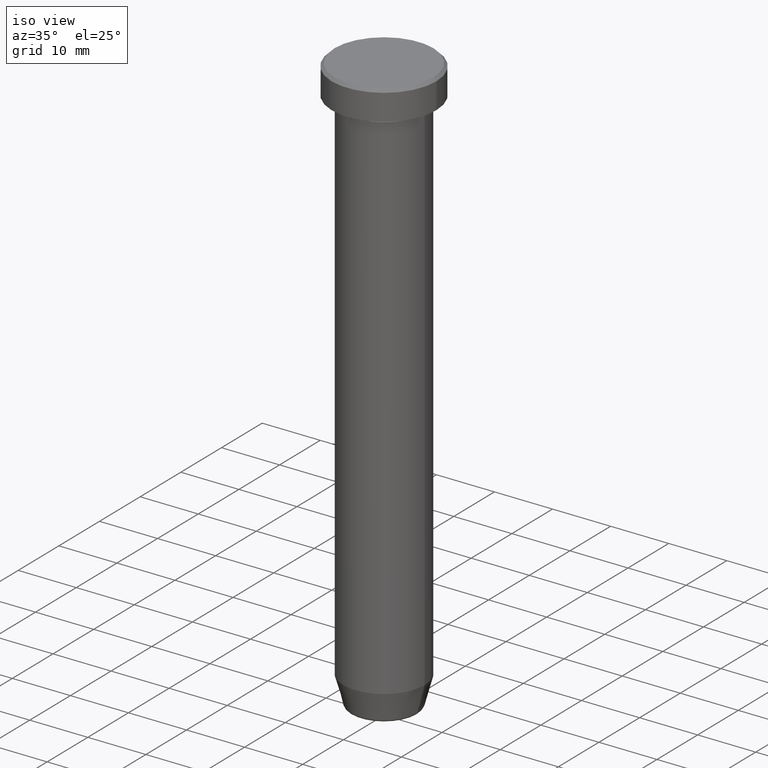
[diagram: clean part render]
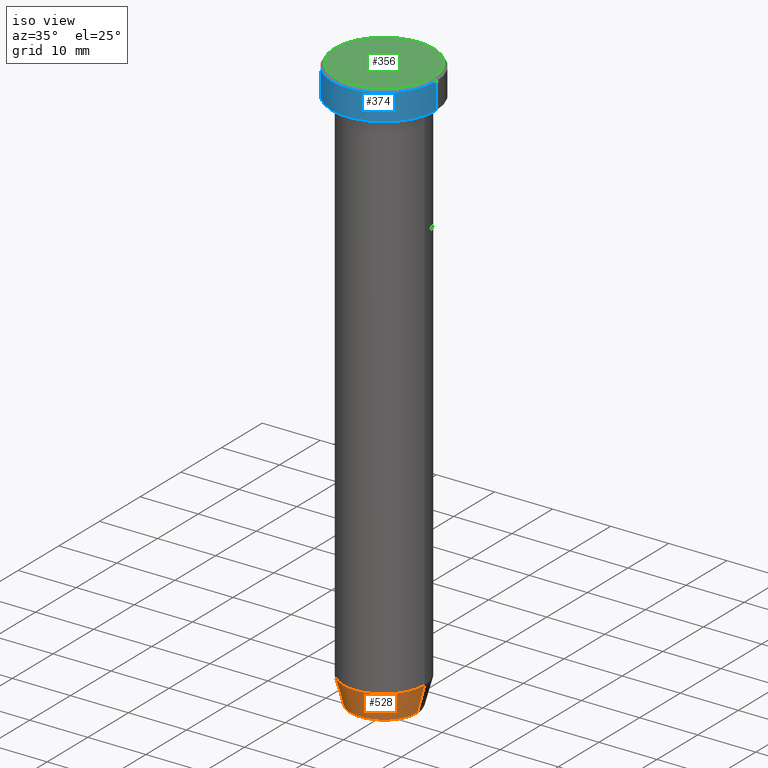
[diagram: same view with three faces highlighted in distinct colors, each labeled with its STEP entity id]
A machine part, iso view with three faces highlighted in distinct colors.
Their STEP definitions:

[orange] entity #528 — the highlighted conical surface has half-angle 15 deg.
#1 = DIRECTION ( 'NONE',  ( -0.000000000000000000, -0.000000000000000000, 1.000000000000000000 ) ) ;
#27 = DIRECTION ( 'NONE',  ( -1.000000000000000000, 0.000000000000000000, 0.000000000000000000 ) ) ;
#48 = DIRECTION ( 'NONE',  ( -0.2588190451025210170, 3.169619151431768639E-17, 0.9659258262890680902 ) ) ;
#53 = VECTOR ( 'NONE', #48, 1000.000000000000114 ) ;
#88 = DIRECTION ( 'NONE',  ( 0.2588190451025210170, 0.000000000000000000, 0.9659258262890680902 ) ) ;
#92 = CARTESIAN_POINT ( 'NONE',  ( 5.759553456999434218, 0.000000000000000000, -99.62940952255127058 ) ) ;
#139 = ORIENTED_EDGE ( 'NONE', *, *, #229, .T. ) ;
#149 = CARTESIAN_POINT ( 'NONE',  ( -5.660254037844383745, 6.931811989807006322E-16, -100.0000000000000000 ) ) ;
#150 = CIRCLE ( 'NONE', #223, 5.759553456999434218 ) ;
#156 = AXIS2_PLACEMENT_3D ( 'NONE', #584, #268, #208 ) ;
#160 = CARTESIAN_POINT ( 'NONE',  ( 7.000000000000000000, 0.000000000000000000, -95.00000000000000000 ) ) ;
#171 = LINE ( 'NONE', #321, #510 ) ;
#184 = VERTEX_POINT ( 'NONE', #92 ) ;
#208 = DIRECTION ( 'NONE',  ( 1.000000000000000000, 0.000000000000000000, 0.000000000000000000 ) ) ;
#209 = CARTESIAN_POINT ( 'NONE',  ( -5.759553456999434218, 7.812973149831952759E-16, -99.62940952255127058 ) ) ;
#213 = EDGE_CURVE ( 'NONE', #429, #184, #150, .T. ) ;
#223 = AXIS2_PLACEMENT_3D ( 'NONE', #492, #264, #27 ) ;
#229 = EDGE_CURVE ( 'NONE', #184, #413, #171, .T. ) ;
#230 = FACE_OUTER_BOUND ( 'NONE', #504, .T. ) ;
#231 = CIRCLE ( 'NONE', #156, 7.000000000000000000 ) ;
#264 = DIRECTION ( 'NONE',  ( -0.000000000000000000, -0.000000000000000000, 1.000000000000000000 ) ) ;
#268 = DIRECTION ( 'NONE',  ( -0.000000000000000000, -0.000000000000000000, 1.000000000000000000 ) ) ;
#321 = CARTESIAN_POINT ( 'NONE',  ( 5.660254037844383745, 0.000000000000000000, -100.0000000000000000 ) ) ;
#323 = ORIENTED_EDGE ( 'NONE', *, *, #213, .T. ) ;
#326 = EDGE_CURVE ( 'NONE', #442, #413, #231, .T. ) ;
#352 = ORIENTED_EDGE ( 'NONE', *, *, #326, .F. ) ;
#377 = CARTESIAN_POINT ( 'NONE',  ( 0.000000000000000000, 0.000000000000000000, -100.0000000000000000 ) ) ;
#413 = VERTEX_POINT ( 'NONE', #160 ) ;
#424 = CONICAL_SURFACE ( 'NONE', #557, 5.660254037844383745, 0.2617993877991497409 ) ;
#429 = VERTEX_POINT ( 'NONE', #209 ) ;
#442 = VERTEX_POINT ( 'NONE', #567 ) ;
#475 = DIRECTION ( 'NONE',  ( 1.000000000000000000, 0.000000000000000000, 0.000000000000000000 ) ) ;
#485 = ORIENTED_EDGE ( 'NONE', *, *, #558, .F. ) ;
#492 = CARTESIAN_POINT ( 'NONE',  ( 0.000000000000000000, 0.000000000000000000, -99.62940952255127058 ) ) ;
#504 = EDGE_LOOP ( 'NONE', ( #485, #323, #139, #352 ) ) ;
#510 = VECTOR ( 'NONE', #88, 1000.000000000000114 ) ;
#528 = ADVANCED_FACE ( 'NONE', ( #230 ), #424, .T. ) ;
#555 = LINE ( 'NONE', #149, #53 ) ;
#557 = AXIS2_PLACEMENT_3D ( 'NONE', #377, #1, #475 ) ;
#558 = EDGE_CURVE ( 'NONE', #429, #442, #555, .T. ) ;
#567 = CARTESIAN_POINT ( 'NONE',  ( -7.000000000000000000, 8.572527594031473190E-16, -95.00000000000000000 ) ) ;
#584 = CARTESIAN_POINT ( 'NONE',  ( 0.000000000000000000, 0.000000000000000000, -95.00000000000000000 ) ) ;

[blue] entity #374 — the highlighted cylindrical surface (partial cylindrical patch) has radius 9 mm, axis along (-0, -0, 1).
#4 = LINE ( 'NONE', #368, #203 ) ;
#9 = EDGE_CURVE ( 'NONE', #237, #505, #37, .T. ) ;
#31 = VERTEX_POINT ( 'NONE', #186 ) ;
#37 = CIRCLE ( 'NONE', #385, 9.000000000000000000 ) ;
#47 = EDGE_CURVE ( 'NONE', #463, #505, #330, .T. ) ;
#73 = DIRECTION ( 'NONE',  ( -0.000000000000000000, -0.000000000000000000, 1.000000000000000000 ) ) ;
#78 = FACE_OUTER_BOUND ( 'NONE', #84, .T. ) ;
#84 = EDGE_LOOP ( 'NONE', ( #455, #588, #373, #324 ) ) ;
#121 = CIRCLE ( 'NONE', #262, 9.000000000000000000 ) ;
#152 = DIRECTION ( 'NONE',  ( -0.000000000000000000, -0.000000000000000000, 1.000000000000000000 ) ) ;
#159 = DIRECTION ( 'NONE',  ( 1.000000000000000000, 0.000000000000000000, 0.000000000000000000 ) ) ;
#186 = CARTESIAN_POINT ( 'NONE',  ( 9.000000000000000000, 0.000000000000000000, -5.000000000000000000 ) ) ;
#191 = AXIS2_PLACEMENT_3D ( 'NONE', #444, #73, #317 ) ;
#194 = CARTESIAN_POINT ( 'NONE',  ( 0.000000000000000000, 0.000000000000000000, -0.4999999999999987232 ) ) ;
#203 = VECTOR ( 'NONE', #235, 1000.000000000000000 ) ;
#221 = DIRECTION ( 'NONE',  ( -0.000000000000000000, -0.000000000000000000, 1.000000000000000000 ) ) ;
#235 = DIRECTION ( 'NONE',  ( -0.000000000000000000, -0.000000000000000000, 1.000000000000000000 ) ) ;
#237 = VERTEX_POINT ( 'NONE', #256 ) ;
#256 = CARTESIAN_POINT ( 'NONE',  ( 9.000000000000000000, 0.000000000000000000, -0.4999999999999987232 ) ) ;
#257 = CARTESIAN_POINT ( 'NONE',  ( -9.000000000000000000, 1.102182119232617714E-15, -5.000000000000000000 ) ) ;
#262 = AXIS2_PLACEMENT_3D ( 'NONE', #320, #152, #378 ) ;
#282 = CARTESIAN_POINT ( 'NONE',  ( -9.000000000000000000, 1.102182119232617714E-15, 0.000000000000000000 ) ) ;
#317 = DIRECTION ( 'NONE',  ( 1.000000000000000000, 0.000000000000000000, 0.000000000000000000 ) ) ;
#320 = CARTESIAN_POINT ( 'NONE',  ( 0.000000000000000000, 0.000000000000000000, -5.000000000000000000 ) ) ;
#324 = ORIENTED_EDGE ( 'NONE', *, *, #9, .T. ) ;
#330 = LINE ( 'NONE', #282, #407 ) ;
#368 = CARTESIAN_POINT ( 'NONE',  ( 9.000000000000000000, 0.000000000000000000, 0.000000000000000000 ) ) ;
#373 = ORIENTED_EDGE ( 'NONE', *, *, #553, .T. ) ;
#374 = ADVANCED_FACE ( 'NONE', ( #78 ), #395, .T. ) ;
#378 = DIRECTION ( 'NONE',  ( 1.000000000000000000, 0.000000000000000000, 0.000000000000000000 ) ) ;
#385 = AXIS2_PLACEMENT_3D ( 'NONE', #194, #433, #159 ) ;
#395 = CYLINDRICAL_SURFACE ( 'NONE', #191, 9.000000000000000000 ) ;
#407 = VECTOR ( 'NONE', #221, 1000.000000000000000 ) ;
#422 = CARTESIAN_POINT ( 'NONE',  ( -9.000000000000000000, 1.102182119232617714E-15, -0.4999999999999987232 ) ) ;
#433 = DIRECTION ( 'NONE',  ( 0.000000000000000000, 0.000000000000000000, -1.000000000000000000 ) ) ;
#444 = CARTESIAN_POINT ( 'NONE',  ( 0.000000000000000000, 0.000000000000000000, 0.000000000000000000 ) ) ;
#455 = ORIENTED_EDGE ( 'NONE', *, *, #47, .F. ) ;
#463 = VERTEX_POINT ( 'NONE', #257 ) ;
#505 = VERTEX_POINT ( 'NONE', #422 ) ;
#508 = EDGE_CURVE ( 'NONE', #463, #31, #121, .T. ) ;
#553 = EDGE_CURVE ( 'NONE', #31, #237, #4, .T. ) ;
#588 = ORIENTED_EDGE ( 'NONE', *, *, #508, .T. ) ;

[green] entity #356 — the highlighted planar face has unit normal (0, -0, 1).
#6 = DIRECTION ( 'NONE',  ( -0.000000000000000000, -0.000000000000000000, 1.000000000000000000 ) ) ;
#16 = PLANE ( 'NONE',  #239 ) ;
#35 = ORIENTED_EDGE ( 'NONE', *, *, #564, .T. ) ;
#44 = AXIS2_PLACEMENT_3D ( 'NONE', #65, #396, #349 ) ;
#54 = EDGE_LOOP ( 'NONE', ( #498, #35 ) ) ;
#65 = CARTESIAN_POINT ( 'NONE',  ( 0.000000000000000000, 0.000000000000000000, 0.000000000000000000 ) ) ;
#80 = CIRCLE ( 'NONE', #44, 8.500000000000003553 ) ;
#190 = DIRECTION ( 'NONE',  ( 1.000000000000000000, 0.000000000000000000, 0.000000000000000000 ) ) ;
#193 = CARTESIAN_POINT ( 'NONE',  ( -8.500000000000003553, 0.000000000000000000, 0.000000000000000000 ) ) ;
#206 = VERTEX_POINT ( 'NONE', #318 ) ;
#224 = CIRCLE ( 'NONE', #303, 8.500000000000003553 ) ;
#239 = AXIS2_PLACEMENT_3D ( 'NONE', #499, #529, #538 ) ;
#296 = EDGE_CURVE ( 'NONE', #501, #206, #80, .T. ) ;
#303 = AXIS2_PLACEMENT_3D ( 'NONE', #514, #6, #190 ) ;
#318 = CARTESIAN_POINT ( 'NONE',  ( 8.500000000000003553, 1.071565949253934321E-15, 0.000000000000000000 ) ) ;
#349 = DIRECTION ( 'NONE',  ( 1.000000000000000000, 0.000000000000000000, 0.000000000000000000 ) ) ;
#356 = ADVANCED_FACE ( 'NONE', ( #438 ), #16, .T. ) ;
#396 = DIRECTION ( 'NONE',  ( -0.000000000000000000, -0.000000000000000000, 1.000000000000000000 ) ) ;
#438 = FACE_OUTER_BOUND ( 'NONE', #54, .T. ) ;
#498 = ORIENTED_EDGE ( 'NONE', *, *, #296, .T. ) ;
#499 = CARTESIAN_POINT ( 'NONE',  ( 0.000000000000000000, 0.000000000000000000, 0.000000000000000000 ) ) ;
#501 = VERTEX_POINT ( 'NONE', #193 ) ;
#514 = CARTESIAN_POINT ( 'NONE',  ( 0.000000000000000000, 0.000000000000000000, 0.000000000000000000 ) ) ;
#529 = DIRECTION ( 'NONE',  ( 0.000000000000000000, -0.000000000000000000, 1.000000000000000000 ) ) ;
#538 = DIRECTION ( 'NONE',  ( 1.000000000000000000, 0.000000000000000000, 0.000000000000000000 ) ) ;
#564 = EDGE_CURVE ( 'NONE', #206, #501, #224, .T. ) ;